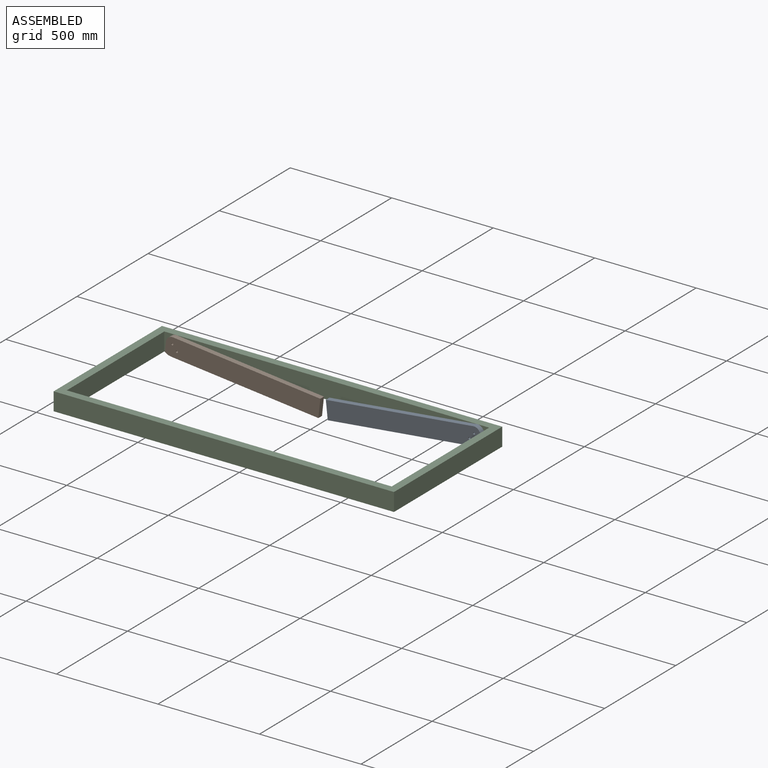
[diagram: assembled view]
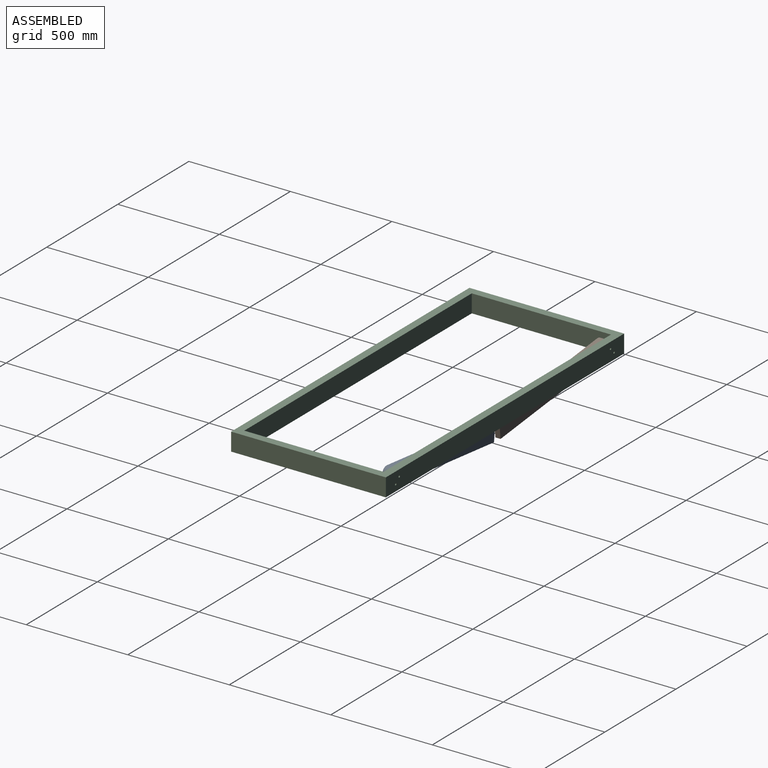
[diagram: assembled view, second angle]
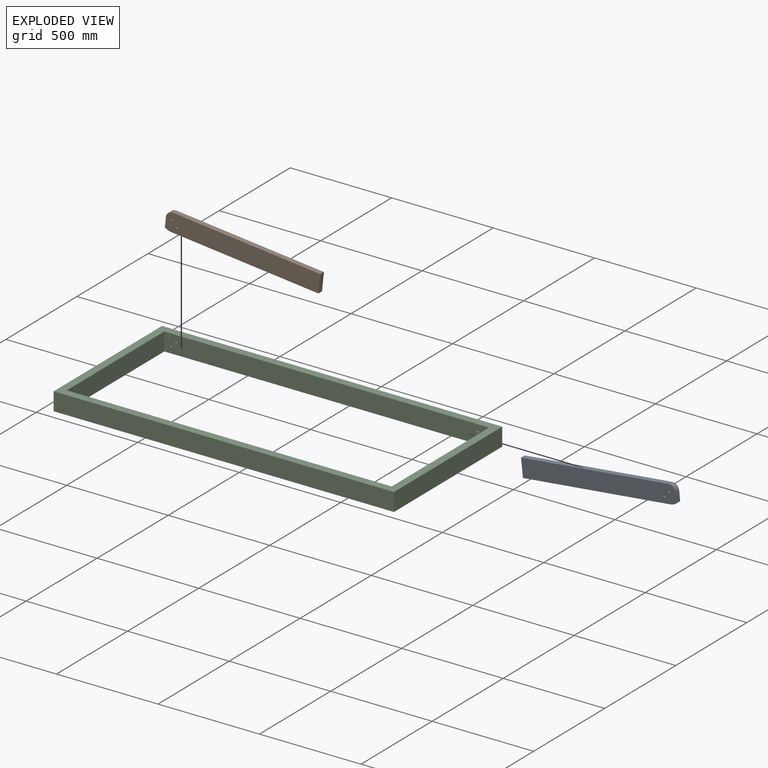
[diagram: exploded view]
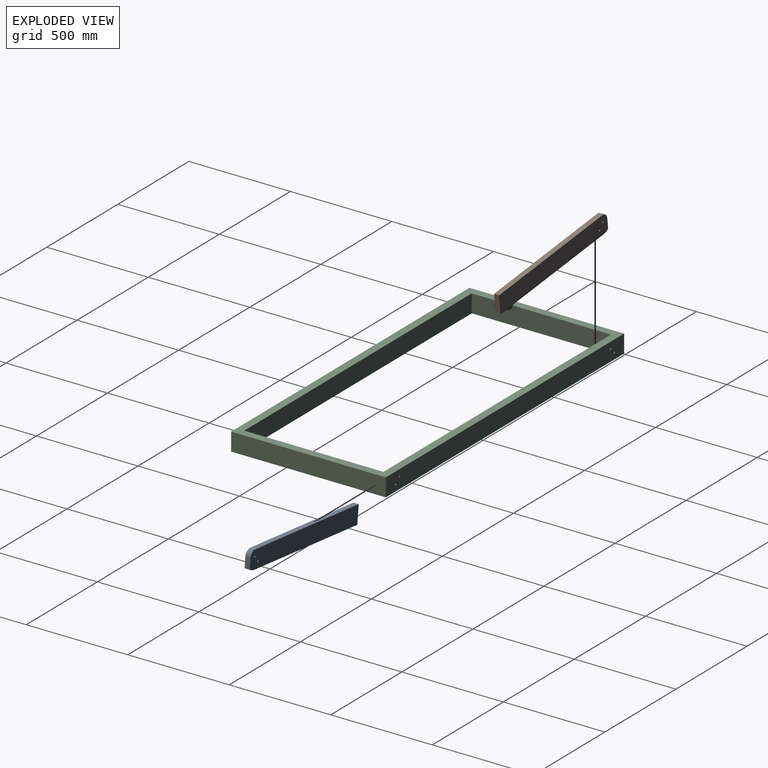
[diagram: exploded view, second angle]
ASSEMBLY  parts=3 mates=2
PART A: 10 faces, bbox 88.9x25.4x762 mm
  f0: cylinder r=57.15mm len=31.75mm, axis (0,1,0), area 855mm2, adj f1,f5,f6,f7
  f1: plane 730.25x25.4mm, normal (-1,0,0), area 18548.3mm2, adj f0,f2,f6,f7
  f2: plane 88.9x25.4mm, normal (0,0,-1), area 2258.1mm2, adj f1,f3,f6,f7
  f3: plane 730.25x25.4mm, normal (1,0,0), area 18548.3mm2, adj f2,f4,f6,f7
  f4: cylinder r=31.75mm len=31.75mm, axis (0,1,0), area 1266.8mm2, adj f3,f5,f6,f7
  f5: plane 47.52x25.4mm, normal (0,0,1), area 1207mm2, adj f0,f4,f6,f7
  f6: plane 762x88.9mm, normal (0,-1,0), area 67276.2mm2, adj f0,f1,f2,f3,f4,f5,f8,f9
  f7: plane 762x88.9mm, normal (0,1,0), area 67276.2mm2, adj f0,f1,f2,f3,f4,f5,f8,f9
  f8: cylinder r=4.9mm len=25.4mm, axis (0,1,0), area 782.4mm2, adj f6,f7
  f9: cylinder r=4.9mm len=25.4mm, axis (0,1,0), area 782.4mm2, adj f6,f7
PART B: same geometry as A
PART C: 14 faces, bbox 1676.4x762x88.9 mm
  f0: plane 1676.4x88.9mm, normal (0,-1,0), area 149032mm2, adj f1,f7,f8,f9
  f1: plane 762x88.9mm, normal (1,0,0), area 67741.8mm2, adj f0,f2,f8,f9
  f2: plane 1676.4x88.9mm, normal (0,1,0), area 148730mm2, adj f1,f7,f8,f9,f10,f11,f12,f13
  f3: plane 685.8x88.9mm, normal (-1,0,0), area 60967.6mm2, adj f4,f6,f8,f9
  f4: plane 1600.2x88.9mm, normal (0,1,0), area 142257.8mm2, adj f3,f5,f8,f9
  f5: plane 685.8x88.9mm, normal (1,0,0), area 60967.6mm2, adj f4,f6,f8,f9
  f6: plane 1600.2x88.9mm, normal (0,-1,0), area 141955.8mm2, adj f3,f5,f8,f9,f10,f11,f12,f13
  f7: plane 762x88.9mm, normal (-1,0,0), area 67741.8mm2, adj f0,f2,f8,f9
  f8: plane 1676.4x762mm, normal (0,0,-1), area 179999.6mm2, adj f0,f1,f2,f3,f4,f5,f6,f7
  f9: plane 1676.4x762mm, normal (0,0,1), area 179999.6mm2, adj f0,f1,f2,f3,f4,f5,f6,f7
  f10: cylinder r=4.9mm len=38.1mm, axis (0,-1,0), area 1173.5mm2, adj f2,f6
  f11: cylinder r=4.9mm len=38.1mm, axis (0,-1,0), area 1173.5mm2, adj f2,f6
  f12: cylinder r=4.9mm len=38.1mm, axis (0,-1,0), area 1173.5mm2, adj f2,f6
  f13: cylinder r=4.9mm len=38.1mm, axis (0,-1,0), area 1173.5mm2, adj f2,f6
PLACE A rot(axis=(0.67,0,0.74),180deg) t=(717.93,402.13,652.96)mm
PLACE B rot(axis=(0,-1,0),83.8deg) t=(-672.35,-258.27,652.78)mm
PLACE C t=(21.42,-258.27,-57.47)mm fixed
MATE revolute A.f0 <-> C.f13  axis (0,1,0) through (764.37,84.63,-89.22)mm
MATE revolute C.f11 <-> B.f0  axis (0,-1,0) through (-721.53,84.63,-89.22)mm
